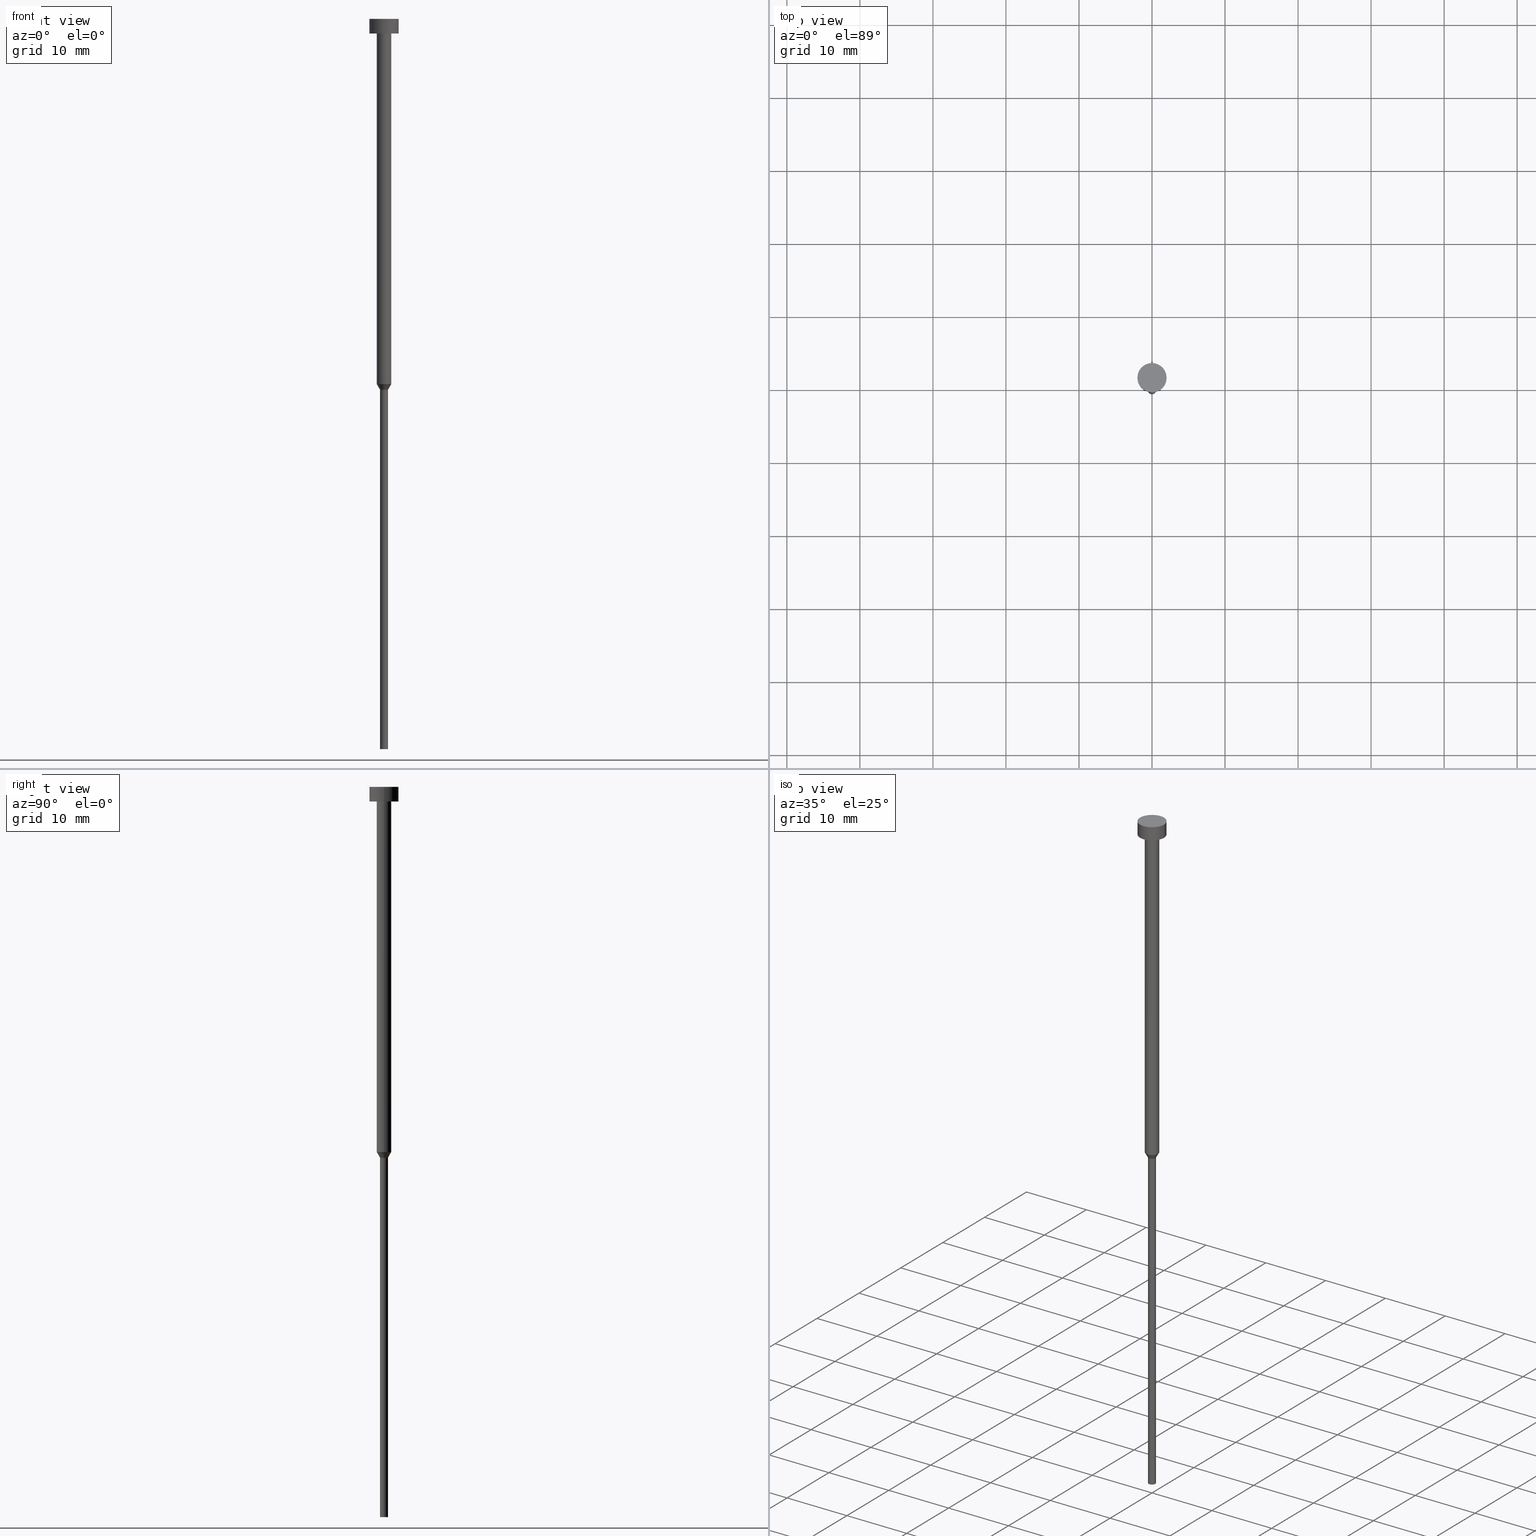
[diagram: canonical four-view strip — front | top / right | iso, engineering-drawing reading convention]
A machine part, canonical four-view strip (front | top / right | iso — engineering-drawing reading convention). The complete STEP part file that produces these views, byte-faithful:
ISO-10303-21;
HEADER;
FILE_DESCRIPTION (( 'STEP AP203' ),
    '1' );
FILE_NAME ('f33f.STEP',
    '2023-02-13T12:40:53',
    ( '' ),
    ( '' ),
    'SwSTEP 2.0',
    'SolidWorks 2019',
    '' );
FILE_SCHEMA (( 'CONFIG_CONTROL_DESIGN' ));
ENDSEC;

DATA;
#1 = CC_DESIGN_APPROVAL ( #96, ( #19 ) ) ;
#2 = CARTESIAN_POINT ( 'NONE',  ( 2.000000000000000000, 0.000000000000000000, -2.449293598294705921E-16 ) ) ;
#3 = ORIENTED_EDGE ( 'NONE', *, *, #132, .T. ) ;
#4 = LINE ( 'NONE', #281, #334 ) ;
#5 = ORIENTED_EDGE ( 'NONE', *, *, #119, .T. ) ;
#6 = DIRECTION ( 'NONE',  ( 1.000000000000000000, 0.000000000000000000, 0.000000000000000000 ) ) ;
#7 = SECURITY_CLASSIFICATION ( '', '', #217 ) ;
#8 = CARTESIAN_POINT ( 'NONE',  ( 0.000000000000000000, 0.000000000000000000, -50.77942286340599765 ) ) ;
#9 = DIRECTION ( 'NONE',  ( -0.000000000000000000, -0.000000000000000000, 1.000000000000000000 ) ) ;
#10 = CALENDAR_DATE ( 2023, 13, 2 ) ;
#11 = PLANE ( 'NONE',  #326 ) ;
#12 = AXIS2_PLACEMENT_3D ( 'NONE', #329, #80, #202 ) ;
#13 = APPROVAL_STATUS ( 'not_yet_approved' ) ;
#14 = DATE_AND_TIME ( #294, #292 ) ;
#15 = ORIENTED_EDGE ( 'NONE', *, *, #63, .T. ) ;
#16 = APPROVAL_ROLE ( '' ) ;
#17 = CARTESIAN_POINT ( 'NONE',  ( 0.000000000000000000, 0.000000000000000000, -2.000000000000000444 ) ) ;
#18 = CARTESIAN_POINT ( 'NONE',  ( 0.000000000000000000, 0.000000000000000000, 0.000000000000000000 ) ) ;
#19 = PRODUCT_DEFINITION ( 'NEZN�M�', '', #336, #175 ) ;
#20 = LINE ( 'NONE', #273, #157 ) ;
#21 = CIRCLE ( 'NONE', #251, 0.5500000000000000444 ) ;
#22 = DIRECTION ( 'NONE',  ( -0.000000000000000000, -0.000000000000000000, 1.000000000000000000 ) ) ;
#23 = CYLINDRICAL_SURFACE ( 'NONE', #12, 0.5499999999999999334 ) ;
#24 = CARTESIAN_POINT ( 'NONE',  ( 0.000000000000000000, 0.000000000000000000, -50.77942286340599765 ) ) ;
#25 = VERTEX_POINT ( 'NONE', #241 ) ;
#26 = AXIS2_PLACEMENT_3D ( 'NONE', #297, #170, #47 ) ;
#27 = AXIS2_PLACEMENT_3D ( 'NONE', #312, #309, #213 ) ;
#28 = LINE ( 'NONE', #115, #163 ) ;
#29 = DIRECTION ( 'NONE',  ( -0.000000000000000000, -0.000000000000000000, 1.000000000000000000 ) ) ;
#30 = CARTESIAN_POINT ( 'NONE',  ( 0.000000000000000000, 0.000000000000000000, -100.0000000000000000 ) ) ;
#31 = APPLICATION_CONTEXT ( 'configuration controlled 3d designs of mechanical parts and assemblies' ) ;
#32 = ORIENTED_EDGE ( 'NONE', *, *, #270, .T. ) ;
#33 = DIRECTION ( 'NONE',  ( -0.000000000000000000, -0.000000000000000000, 1.000000000000000000 ) ) ;
#34 = ORIENTED_EDGE ( 'NONE', *, *, #247, .F. ) ;
#35 = FACE_OUTER_BOUND ( 'NONE', #207, .T. ) ;
#36 = FACE_OUTER_BOUND ( 'NONE', #201, .T. ) ;
#37 = DIRECTION ( 'NONE',  ( -0.000000000000000000, -0.000000000000000000, 1.000000000000000000 ) ) ;
#38 = AXIS2_PLACEMENT_3D ( 'NONE', #30, #29, #330 ) ;
#39 = FACE_BOUND ( 'NONE', #143, .T. ) ;
#40 = AXIS2_PLACEMENT_3D ( 'NONE', #310, #57, #180 ) ;
#41 = AXIS2_PLACEMENT_3D ( 'NONE', #323, #73, #136 ) ;
#42 = UNCERTAINTY_MEASURE_WITH_UNIT (LENGTH_MEASURE( 1.000000000000000082E-05 ), #148, 'distance_accuracy_value', 'NONE');
#43 = CALENDAR_DATE ( 2023, 13, 2 ) ;
#44 = VERTEX_POINT ( 'NONE', #2 ) ;
#45 = CARTESIAN_POINT ( 'NONE',  ( 0.000000000000000000, 0.000000000000000000, -2.000000000000000444 ) ) ;
#46 = EDGE_CURVE ( 'NONE', #301, #250, #199, .T. ) ;
#47 = DIRECTION ( 'NONE',  ( 1.000000000000000000, 0.000000000000000000, 0.000000000000000000 ) ) ;
#48 = LOCAL_TIME ( 13, 40, 53.00000000000000000, #234 ) ;
#49 = ORIENTED_EDGE ( 'NONE', *, *, #247, .T. ) ;
#50 = ORIENTED_EDGE ( 'NONE', *, *, #288, .T. ) ;
#51 = FACE_OUTER_BOUND ( 'NONE', #197, .T. ) ;
#52 = ORIENTED_EDGE ( 'NONE', *, *, #81, .F. ) ;
#53 = AXIS2_PLACEMENT_3D ( 'NONE', #314, #62, #186 ) ;
#54 = DIRECTION ( 'NONE',  ( 1.000000000000000000, 0.000000000000000000, 0.000000000000000000 ) ) ;
#55 = VERTEX_POINT ( 'NONE', #219 ) ;
#56 = EDGE_LOOP ( 'NONE', ( #242, #3 ) ) ;
#57 = DIRECTION ( 'NONE',  ( -0.000000000000000000, -0.000000000000000000, 1.000000000000000000 ) ) ;
#58 = APPROVAL_STATUS ( 'not_yet_approved' ) ;
#59 = ADVANCED_BREP_SHAPE_REPRESENTATION ( 'f33f', ( #353, #53 ), #299 ) ;
#60 = AXIS2_PLACEMENT_3D ( 'NONE', #280, #274, #223 ) ;
#61 = MECHANICAL_CONTEXT ( 'NONE', #333, 'mechanical' ) ;
#62 = DIRECTION ( 'NONE',  ( 0.000000000000000000, 0.000000000000000000, 1.000000000000000000 ) ) ;
#63 = EDGE_CURVE ( 'NONE', #91, #232, #194, .T. ) ;
#64 = DATE_AND_TIME ( #258, #264 ) ;
#65 = CIRCLE ( 'NONE', #271, 2.000000000000000000 ) ;
#66 = CARTESIAN_POINT ( 'NONE',  ( 0.000000000000000000, 0.000000000000000000, 0.000000000000000000 ) ) ;
#67 = CIRCLE ( 'NONE', #27, 2.000000000000000000 ) ;
#68 = CARTESIAN_POINT ( 'NONE',  ( -2.000000000000000000, 2.449293598294706414E-16, -2.000000000000000444 ) ) ;
#69 = PRODUCT ( 'f33f', 'f33f', '', ( #61 ) ) ;
#70 = DIRECTION ( 'NONE',  ( 1.000000000000000000, 0.000000000000000000, 0.000000000000000000 ) ) ;
#71 = APPROVAL_DATE_TIME ( #286, #97 ) ;
#72 = AXIS2_PLACEMENT_3D ( 'NONE', #267, #9, #123 ) ;
#73 = DIRECTION ( 'NONE',  ( -0.000000000000000000, -0.000000000000000000, 1.000000000000000000 ) ) ;
#74 = CC_DESIGN_PERSON_AND_ORGANIZATION_ASSIGNMENT ( #212, #158, ( #69 ) ) ;
#75 = FACE_OUTER_BOUND ( 'NONE', #85, .T. ) ;
#76 = ADVANCED_FACE ( 'NONE', ( #196 ), #325, .T. ) ;
#77 = VECTOR ( 'NONE', #185, 1000.000000000000000 ) ;
#78 = DIRECTION ( 'NONE',  ( 1.000000000000000000, 0.000000000000000000, 0.000000000000000000 ) ) ;
#79 = EDGE_LOOP ( 'NONE', ( #122, #228 ) ) ;
#80 = DIRECTION ( 'NONE',  ( -0.000000000000000000, -0.000000000000000000, 1.000000000000000000 ) ) ;
#81 = EDGE_CURVE ( 'NONE', #91, #351, #20, .T. ) ;
#82 = DIRECTION ( 'NONE',  ( 0.000000000000000000, -0.000000000000000000, 1.000000000000000000 ) ) ;
#83 = EDGE_LOOP ( 'NONE', ( #110, #34 ) ) ;
#84 = CARTESIAN_POINT ( 'NONE',  ( 0.000000000000000000, 0.000000000000000000, -2.000000000000000444 ) ) ;
#85 = EDGE_LOOP ( 'NONE', ( #255, #141, #104, #114 ) ) ;
#86 = CIRCLE ( 'NONE', #291, 0.5500000000000000444 ) ;
#87 = AXIS2_PLACEMENT_3D ( 'NONE', #45, #245, #169 ) ;
#88 = DIRECTION ( 'NONE',  ( -0.000000000000000000, -0.000000000000000000, 1.000000000000000000 ) ) ;
#89 = ORIENTED_EDGE ( 'NONE', *, *, #81, .T. ) ;
#90 = EDGE_CURVE ( 'NONE', #55, #232, #142, .T. ) ;
#91 = VERTEX_POINT ( 'NONE', #302 ) ;
#92 = DATE_TIME_ROLE ( 'classification_date' ) ;
#93 = FACE_OUTER_BOUND ( 'NONE', #83, .T. ) ;
#94 = DIRECTION ( 'NONE',  ( -0.000000000000000000, -0.000000000000000000, 1.000000000000000000 ) ) ;
#95 = AXIS2_PLACEMENT_3D ( 'NONE', #285, #37, #340 ) ;
#96 = APPROVAL ( #13, 'NEUR�EN�' ) ;
#97 = APPROVAL ( #58, 'NEUR�EN�' ) ;
#98 = DIRECTION ( 'NONE',  ( -0.000000000000000000, -0.000000000000000000, 1.000000000000000000 ) ) ;
#99 = PERSON_AND_ORGANIZATION_ROLE ( 'creator' ) ;
#100 = DIRECTION ( 'NONE',  ( -0.000000000000000000, -0.000000000000000000, 1.000000000000000000 ) ) ;
#101 = AXIS2_PLACEMENT_3D ( 'NONE', #66, #315, #214 ) ;
#102 = EDGE_CURVE ( 'NONE', #250, #301, #239, .T. ) ;
#103 = ADVANCED_FACE ( 'NONE', ( #116 ), #327, .T. ) ;
#104 = ORIENTED_EDGE ( 'NONE', *, *, #90, .T. ) ;
#105 = CC_DESIGN_PERSON_AND_ORGANIZATION_ASSIGNMENT ( #164, #99, ( #336 ) ) ;
#106 = APPROVAL_STATUS ( 'not_yet_approved' ) ;
#107 = CLOSED_SHELL ( 'NONE', ( #76, #222, #283, #282, #156, #324, #277, #198, #168, #179, #103 ) ) ;
#108 = DIRECTION ( 'NONE',  ( -0.000000000000000000, -0.000000000000000000, 1.000000000000000000 ) ) ;
#109 = ORIENTED_EDGE ( 'NONE', *, *, #337, .F. ) ;
#110 = ORIENTED_EDGE ( 'NONE', *, *, #270, .F. ) ;
#111 = EDGE_CURVE ( 'NONE', #173, #55, #86, .T. ) ;
#112 = AXIS2_PLACEMENT_3D ( 'NONE', #204, #253, #174 ) ;
#113 = EDGE_CURVE ( 'NONE', #232, #284, #4, .T. ) ;
#114 = ORIENTED_EDGE ( 'NONE', *, *, #63, .F. ) ;
#115 = CARTESIAN_POINT ( 'NONE',  ( 0.5499999999999999334, 0.000000000000000000, 0.000000000000000000 ) ) ;
#116 = FACE_OUTER_BOUND ( 'NONE', #56, .T. ) ;
#117 = EDGE_LOOP ( 'NONE', ( #328, #49, #195, #230 ) ) ;
#118 = DIRECTION ( 'NONE',  ( -0.000000000000000000, -0.000000000000000000, 1.000000000000000000 ) ) ;
#119 = EDGE_CURVE ( 'NONE', #284, #351, #125, .T. ) ;
#120 = CIRCLE ( 'NONE', #140, 2.000000000000000000 ) ;
#121 = APPLICATION_PROTOCOL_DEFINITION ( 'international standard', 'config_control_design', 1994, #31 ) ;
#122 = ORIENTED_EDGE ( 'NONE', *, *, #46, .F. ) ;
#123 = DIRECTION ( 'NONE',  ( 1.000000000000000000, 0.000000000000000000, 0.000000000000000000 ) ) ;
#124 = PRODUCT_DEFINITION_SHAPE ( 'NONE', 'NONE',  #19 ) ;
#125 = CIRCLE ( 'NONE', #133, 1.000000000000003553 ) ;
#126 = CARTESIAN_POINT ( 'NONE',  ( 0.000000000000000000, 0.000000000000000000, -50.00000000000000000 ) ) ;
#127 = DIRECTION ( 'NONE',  ( 0.000000000000000000, 0.000000000000000000, -1.000000000000000000 ) ) ;
#128 = APPROVAL_ROLE ( '' ) ;
#129 = PLANE ( 'NONE',  #145 ) ;
#130 = EDGE_CURVE ( 'NONE', #250, #173, #254, .T. ) ;
#131 = SHAPE_DEFINITION_REPRESENTATION ( #124, #59 ) ;
#132 = EDGE_CURVE ( 'NONE', #338, #44, #65, .T. ) ;
#133 = AXIS2_PLACEMENT_3D ( 'NONE', #84, #304, #54 ) ;
#134 = CARTESIAN_POINT ( 'NONE',  ( 1.000000000000003109, 0.000000000000000000, -50.00000000000000000 ) ) ;
#135 = CIRCLE ( 'NONE', #72, 1.000000000000003553 ) ;
#136 = DIRECTION ( 'NONE',  ( 1.000000000000000000, 0.000000000000000000, 0.000000000000000000 ) ) ;
#137 = DATE_AND_TIME ( #43, #318 ) ;
#138 = DIRECTION ( 'NONE',  ( 1.000000000000000000, 0.000000000000000000, 0.000000000000000000 ) ) ;
#139 = ORIENTED_EDGE ( 'NONE', *, *, #189, .T. ) ;
#140 = AXIS2_PLACEMENT_3D ( 'NONE', #17, #100, #138 ) ;
#141 = ORIENTED_EDGE ( 'NONE', *, *, #111, .T. ) ;
#142 = LINE ( 'NONE', #319, #278 ) ;
#143 = EDGE_LOOP ( 'NONE', ( #5, #249 ) ) ;
#144 = ORIENTED_EDGE ( 'NONE', *, *, #354, .F. ) ;
#145 = AXIS2_PLACEMENT_3D ( 'NONE', #262, #231, #260 ) ;
#146 = ORIENTED_EDGE ( 'NONE', *, *, #165, .T. ) ;
#147 = ORIENTED_EDGE ( 'NONE', *, *, #348, .T. ) ;
#148 =( LENGTH_UNIT ( ) NAMED_UNIT ( * ) SI_UNIT ( .MILLI., .METRE. ) );
#149 = AXIS2_PLACEMENT_3D ( 'NONE', #126, #33, #344 ) ;
#150 = CC_DESIGN_APPROVAL ( #97, ( #7 ) ) ;
#151 = COORDINATED_UNIVERSAL_TIME_OFFSET ( 1, 0, .AHEAD. ) ;
#152 = CARTESIAN_POINT ( 'NONE',  ( -0.5500000000000000444, 6.735557395310442516E-17, -50.77942286340599765 ) ) ;
#153 = CYLINDRICAL_SURFACE ( 'NONE', #95, 0.5499999999999999334 ) ;
#154 = EDGE_CURVE ( 'NONE', #25, #44, #237, .T. ) ;
#155 = CARTESIAN_POINT ( 'NONE',  ( -2.000000000000000000, 2.449293598294706414E-16, -2.449293598294705921E-16 ) ) ;
#156 = ADVANCED_FACE ( 'NONE', ( #182 ), #129, .T. ) ;
#157 = VECTOR ( 'NONE', #22, 1000.000000000000000 ) ;
#158 = PERSON_AND_ORGANIZATION_ROLE ( 'design_owner' ) ;
#159 = COORDINATED_UNIVERSAL_TIME_OFFSET ( 1, 0, .AHEAD. ) ;
#160 = EDGE_CURVE ( 'NONE', #351, #284, #135, .T. ) ;
#161 = FACE_OUTER_BOUND ( 'NONE', #257, .T. ) ;
#162 = PRODUCT_RELATED_PRODUCT_CATEGORY ( 'detail', '', ( #69 ) ) ;
#163 = VECTOR ( 'NONE', #227, 1000.000000000000000 ) ;
#164 = PERSON_AND_ORGANIZATION ( #184, #216 ) ;
#165 = EDGE_CURVE ( 'NONE', #276, #338, #235, .T. ) ;
#166 = DIRECTION ( 'NONE',  ( 1.000000000000000000, 0.000000000000000000, 0.000000000000000000 ) ) ;
#167 = ORIENTED_EDGE ( 'NONE', *, *, #288, .F. ) ;
#168 = ADVANCED_FACE ( 'NONE', ( #39, #93 ), #11, .T. ) ;
#169 = DIRECTION ( 'NONE',  ( 1.000000000000000000, 0.000000000000000000, 0.000000000000000000 ) ) ;
#170 = DIRECTION ( 'NONE',  ( -0.000000000000000000, -0.000000000000000000, 1.000000000000000000 ) ) ;
#171 = CC_DESIGN_APPROVAL ( #307, ( #336 ) ) ;
#172 = EDGE_LOOP ( 'NONE', ( #32, #146, #144, #205 ) ) ;
#173 = VERTEX_POINT ( 'NONE', #152 ) ;
#174 = DIRECTION ( 'NONE',  ( 1.000000000000000000, 0.000000000000000000, 0.000000000000000000 ) ) ;
#175 = DESIGN_CONTEXT ( 'detailed design', #31, 'design' ) ;
#176 = DIRECTION ( 'NONE',  ( -0.000000000000000000, -0.000000000000000000, 1.000000000000000000 ) ) ;
#177 = DIRECTION ( 'NONE',  ( 1.000000000000000000, 0.000000000000000000, 0.000000000000000000 ) ) ;
#178 = ORIENTED_EDGE ( 'NONE', *, *, #113, .T. ) ;
#179 = ADVANCED_FACE ( 'NONE', ( #236 ), #347, .T. ) ;
#180 = DIRECTION ( 'NONE',  ( 1.000000000000000000, 0.000000000000000000, 0.000000000000000000 ) ) ;
#181 = VECTOR ( 'NONE', #98, 1000.000000000000000 ) ;
#182 = FACE_OUTER_BOUND ( 'NONE', #79, .T. ) ;
#183 = COORDINATED_UNIVERSAL_TIME_OFFSET ( 1, 0, .AHEAD. ) ;
#184 = PERSON ( 'NEUR�EN�', 'NEUR�EN�', 'NEUR�EN�', ('NEUR�EN�'), ('NEUR�EN�'), ('NEUR�EN�') ) ;
#185 = DIRECTION ( 'NONE',  ( -0.000000000000000000, -0.000000000000000000, 1.000000000000000000 ) ) ;
#186 = DIRECTION ( 'NONE',  ( 1.000000000000000000, 0.000000000000000000, 0.000000000000000000 ) ) ;
#187 = CARTESIAN_POINT ( 'NONE',  ( -2.000000000000000000, 2.449293598294706414E-16, 0.000000000000000000 ) ) ;
#188 = VECTOR ( 'NONE', #118, 1000.000000000000000 ) ;
#189 = EDGE_CURVE ( 'NONE', #173, #91, #290, .T. ) ;
#190 = DATE_TIME_ROLE ( 'creation_date' ) ;
#191 = VECTOR ( 'NONE', #317, 1000.000000000000000 ) ;
#192 = DIRECTION ( 'NONE',  ( 0.5000000000000027756, 0.000000000000000000, 0.8660254037844370423 ) ) ;
#193 = CARTESIAN_POINT ( 'NONE',  ( -0.5499999999999999334, 6.735557395310441284E-17, -100.0000000000000000 ) ) ;
#194 = CIRCLE ( 'NONE', #41, 1.000000000000003109 ) ;
#195 = ORIENTED_EDGE ( 'NONE', *, *, #154, .T. ) ;
#196 = FACE_OUTER_BOUND ( 'NONE', #172, .T. ) ;
#197 = EDGE_LOOP ( 'NONE', ( #269, #331, #225, #167 ) ) ;
#198 = ADVANCED_FACE ( 'NONE', ( #161 ), #341, .T. ) ;
#199 = CIRCLE ( 'NONE', #256, 0.5499999999999999334 ) ;
#200 = APPROVAL_PERSON_ORGANIZATION ( #208, #97, #261 ) ;
#201 = EDGE_LOOP ( 'NONE', ( #332, #248, #50, #306 ) ) ;
#202 = DIRECTION ( 'NONE',  ( 1.000000000000000000, 0.000000000000000000, 0.000000000000000000 ) ) ;
#203 = ORIENTED_EDGE ( 'NONE', *, *, #337, .T. ) ;
#204 = CARTESIAN_POINT ( 'NONE',  ( 0.000000000000000000, 0.000000000000000000, -50.00000000000000000 ) ) ;
#205 = ORIENTED_EDGE ( 'NONE', *, *, #154, .F. ) ;
#206 =( NAMED_UNIT ( * ) PLANE_ANGLE_UNIT ( ) SI_UNIT ( $, .RADIAN. ) );
#207 = EDGE_LOOP ( 'NONE', ( #203, #89, #311, #226 ) ) ;
#208 = PERSON_AND_ORGANIZATION ( #184, #216 ) ;
#209 = CARTESIAN_POINT ( 'NONE',  ( -1.000000000000003553, 1.224646799147357398E-16, -2.000000000000000444 ) ) ;
#210 = CARTESIAN_POINT ( 'NONE',  ( -1.000000000000003109, 1.224646799147356905E-16, -50.00000000000000000 ) ) ;
#211 = AXIS2_PLACEMENT_3D ( 'NONE', #18, #244, #166 ) ;
#212 = PERSON_AND_ORGANIZATION ( #184, #216 ) ;
#213 = DIRECTION ( 'NONE',  ( 1.000000000000000000, 0.000000000000000000, 0.000000000000000000 ) ) ;
#214 = DIRECTION ( 'NONE',  ( 1.000000000000000000, 0.000000000000000000, 0.000000000000000000 ) ) ;
#215 = PERSON_AND_ORGANIZATION_ROLE ( 'classification_officer' ) ;
#216 = ORGANIZATION ( 'NEUR�EN�', 'NEUR�EN�', '' ) ;
#217 = SECURITY_CLASSIFICATION_LEVEL ( 'unclassified' ) ;
#218 = PERSON_AND_ORGANIZATION ( #184, #216 ) ;
#219 = CARTESIAN_POINT ( 'NONE',  ( 0.5500000000000000444, 0.000000000000000000, -50.77942286340599765 ) ) ;
#220 = CARTESIAN_POINT ( 'NONE',  ( 0.000000000000000000, 0.000000000000000000, -100.0000000000000000 ) ) ;
#221 = CC_DESIGN_PERSON_AND_ORGANIZATION_ASSIGNMENT ( #295, #321, ( #19 ) ) ;
#222 = ADVANCED_FACE ( 'NONE', ( #35 ), #298, .T. ) ;
#223 = DIRECTION ( 'NONE',  ( 1.000000000000000000, 0.000000000000000000, 0.000000000000000000 ) ) ;
#224 = CIRCLE ( 'NONE', #87, 2.000000000000000000 ) ;
#225 = ORIENTED_EDGE ( 'NONE', *, *, #348, .F. ) ;
#226 = ORIENTED_EDGE ( 'NONE', *, *, #113, .F. ) ;
#227 = DIRECTION ( 'NONE',  ( -0.000000000000000000, -0.000000000000000000, 1.000000000000000000 ) ) ;
#228 = ORIENTED_EDGE ( 'NONE', *, *, #102, .F. ) ;
#229 = CARTESIAN_POINT ( 'NONE',  ( 0.000000000000000000, 0.000000000000000000, -2.449293598294705921E-16 ) ) ;
#230 = ORIENTED_EDGE ( 'NONE', *, *, #132, .F. ) ;
#231 = DIRECTION ( 'NONE',  ( 0.000000000000000000, 0.000000000000000000, -1.000000000000000000 ) ) ;
#232 = VERTEX_POINT ( 'NONE', #134 ) ;
#233 = CALENDAR_DATE ( 2023, 13, 2 ) ;
#234 = COORDINATED_UNIVERSAL_TIME_OFFSET ( 1, 0, .AHEAD. ) ;
#235 = LINE ( 'NONE', #187, #181 ) ;
#236 = FACE_OUTER_BOUND ( 'NONE', #117, .T. ) ;
#237 = LINE ( 'NONE', #287, #77 ) ;
#238 = PERSON_AND_ORGANIZATION ( #184, #216 ) ;
#239 = CIRCLE ( 'NONE', #38, 0.5499999999999999334 ) ;
#240 = LOCAL_TIME ( 13, 40, 53.00000000000000000, #183 ) ;
#241 = CARTESIAN_POINT ( 'NONE',  ( 2.000000000000000000, 0.000000000000000000, -2.000000000000000444 ) ) ;
#242 = ORIENTED_EDGE ( 'NONE', *, *, #354, .T. ) ;
#243 = APPROVAL_DATE_TIME ( #137, #307 ) ;
#244 = DIRECTION ( 'NONE',  ( -0.000000000000000000, -0.000000000000000000, 1.000000000000000000 ) ) ;
#245 = DIRECTION ( 'NONE',  ( -0.000000000000000000, -0.000000000000000000, 1.000000000000000000 ) ) ;
#246 = AXIS2_PLACEMENT_3D ( 'NONE', #335, #82, #300 ) ;
#247 = EDGE_CURVE ( 'NONE', #276, #25, #224, .T. ) ;
#248 = ORIENTED_EDGE ( 'NONE', *, *, #102, .T. ) ;
#249 = ORIENTED_EDGE ( 'NONE', *, *, #160, .T. ) ;
#250 = VERTEX_POINT ( 'NONE', #193 ) ;
#251 = AXIS2_PLACEMENT_3D ( 'NONE', #8, #94, #6 ) ;
#252 = DIRECTION ( 'NONE',  ( -0.000000000000000000, -0.000000000000000000, 1.000000000000000000 ) ) ;
#253 = DIRECTION ( 'NONE',  ( -0.000000000000000000, -0.000000000000000000, 1.000000000000000000 ) ) ;
#254 = LINE ( 'NONE', #275, #188 ) ;
#255 = ORIENTED_EDGE ( 'NONE', *, *, #189, .F. ) ;
#256 = AXIS2_PLACEMENT_3D ( 'NONE', #220, #108, #70 ) ;
#257 = EDGE_LOOP ( 'NONE', ( #52, #15, #178, #296 ) ) ;
#258 = CALENDAR_DATE ( 2023, 13, 2 ) ;
#259 = CARTESIAN_POINT ( 'NONE',  ( 0.5499999999999999334, 0.000000000000000000, -100.0000000000000000 ) ) ;
#260 = DIRECTION ( 'NONE',  ( -1.000000000000000000, 0.000000000000000000, -0.000000000000000000 ) ) ;
#261 = APPROVAL_ROLE ( '' ) ;
#262 = CARTESIAN_POINT ( 'NONE',  ( 0.000000000000000000, 0.000000000000000000, -100.0000000000000000 ) ) ;
#263 = CC_DESIGN_DATE_AND_TIME_ASSIGNMENT ( #14, #190, ( #19 ) ) ;
#264 = LOCAL_TIME ( 13, 40, 53.00000000000000000, #151 ) ;
#265 = PERSON_AND_ORGANIZATION ( #184, #216 ) ;
#266 = COORDINATED_UNIVERSAL_TIME_OFFSET ( 1, 0, .AHEAD. ) ;
#267 = CARTESIAN_POINT ( 'NONE',  ( 0.000000000000000000, 0.000000000000000000, -2.000000000000000444 ) ) ;
#268 = PERSON_AND_ORGANIZATION ( #184, #216 ) ;
#269 = ORIENTED_EDGE ( 'NONE', *, *, #46, .T. ) ;
#270 = EDGE_CURVE ( 'NONE', #25, #276, #120, .T. ) ;
#271 = AXIS2_PLACEMENT_3D ( 'NONE', #229, #88, #177 ) ;
#272 = APPROVAL_PERSON_ORGANIZATION ( #265, #96, #128 ) ;
#273 = CARTESIAN_POINT ( 'NONE',  ( -1.000000000000003331, 1.224646799147357151E-16, 0.000000000000000000 ) ) ;
#274 = DIRECTION ( 'NONE',  ( -0.000000000000000000, -0.000000000000000000, 1.000000000000000000 ) ) ;
#275 = CARTESIAN_POINT ( 'NONE',  ( -0.5499999999999999334, 6.735557395310441284E-17, 0.000000000000000000 ) ) ;
#276 = VERTEX_POINT ( 'NONE', #68 ) ;
#277 = ADVANCED_FACE ( 'NONE', ( #75 ), #305, .T. ) ;
#278 = VECTOR ( 'NONE', #192, 1000.000000000000000 ) ;
#279 = CARTESIAN_POINT ( 'NONE',  ( 1.000000000000003553, 0.000000000000000000, -2.000000000000000444 ) ) ;
#280 = CARTESIAN_POINT ( 'NONE',  ( 0.000000000000000000, 0.000000000000000000, -50.00000000000000000 ) ) ;
#281 = CARTESIAN_POINT ( 'NONE',  ( 1.000000000000003331, 0.000000000000000000, 0.000000000000000000 ) ) ;
#282 = ADVANCED_FACE ( 'NONE', ( #51 ), #23, .T. ) ;
#283 = ADVANCED_FACE ( 'NONE', ( #303 ), #313, .T. ) ;
#284 = VERTEX_POINT ( 'NONE', #279 ) ;
#285 = CARTESIAN_POINT ( 'NONE',  ( 0.000000000000000000, 0.000000000000000000, 0.000000000000000000 ) ) ;
#286 = DATE_AND_TIME ( #10, #240 ) ;
#287 = CARTESIAN_POINT ( 'NONE',  ( 2.000000000000000000, 0.000000000000000000, 0.000000000000000000 ) ) ;
#288 = EDGE_CURVE ( 'NONE', #301, #55, #28, .T. ) ;
#289 = CC_DESIGN_PERSON_AND_ORGANIZATION_ASSIGNMENT ( #218, #352, ( #336 ) ) ;
#290 = LINE ( 'NONE', #210, #191 ) ;
#291 = AXIS2_PLACEMENT_3D ( 'NONE', #24, #176, #78 ) ;
#292 = LOCAL_TIME ( 13, 40, 53.00000000000000000, #159 ) ;
#293 = DIRECTION ( 'NONE',  ( -1.000000000000000000, 0.000000000000000000, -0.000000000000000000 ) ) ;
#294 = CALENDAR_DATE ( 2023, 13, 2 ) ;
#295 = PERSON_AND_ORGANIZATION ( #184, #216 ) ;
#296 = ORIENTED_EDGE ( 'NONE', *, *, #160, .F. ) ;
#297 = CARTESIAN_POINT ( 'NONE',  ( 0.000000000000000000, 0.000000000000000000, 0.000000000000000000 ) ) ;
#298 = CYLINDRICAL_SURFACE ( 'NONE', #211, 1.000000000000003331 ) ;
#299 =( GEOMETRIC_REPRESENTATION_CONTEXT ( 3 ) GLOBAL_UNCERTAINTY_ASSIGNED_CONTEXT ( ( #42 ) ) GLOBAL_UNIT_ASSIGNED_CONTEXT ( ( #148, #206, #346 ) ) REPRESENTATION_CONTEXT ( 'NONE', 'WORKASPACE' ) );
#300 = DIRECTION ( 'NONE',  ( 1.000000000000000000, 0.000000000000000000, 0.000000000000000000 ) ) ;
#301 = VERTEX_POINT ( 'NONE', #259 ) ;
#302 = CARTESIAN_POINT ( 'NONE',  ( -1.000000000000003109, 1.224646799147356905E-16, -50.00000000000000000 ) ) ;
#303 = FACE_OUTER_BOUND ( 'NONE', #308, .T. ) ;
#304 = DIRECTION ( 'NONE',  ( -0.000000000000000000, -0.000000000000000000, 1.000000000000000000 ) ) ;
#305 = CONICAL_SURFACE ( 'NONE', #60, 1.000000000000003109, 0.5235987755983020353 ) ;
#306 = ORIENTED_EDGE ( 'NONE', *, *, #111, .F. ) ;
#307 = APPROVAL ( #106, 'NEUR�EN�' ) ;
#308 = EDGE_LOOP ( 'NONE', ( #147, #139, #109, #342 ) ) ;
#309 = DIRECTION ( 'NONE',  ( -0.000000000000000000, -0.000000000000000000, 1.000000000000000000 ) ) ;
#310 = CARTESIAN_POINT ( 'NONE',  ( 0.000000000000000000, 0.000000000000000000, 0.000000000000000000 ) ) ;
#311 = ORIENTED_EDGE ( 'NONE', *, *, #119, .F. ) ;
#312 = CARTESIAN_POINT ( 'NONE',  ( 0.000000000000000000, 0.000000000000000000, -2.449293598294705921E-16 ) ) ;
#313 = CONICAL_SURFACE ( 'NONE', #112, 1.000000000000003109, 0.5235987755983020353 ) ;
#314 = CARTESIAN_POINT ( 'NONE',  ( 0.000000000000000000, 0.000000000000000000, 0.000000000000000000 ) ) ;
#315 = DIRECTION ( 'NONE',  ( -0.000000000000000000, -0.000000000000000000, 1.000000000000000000 ) ) ;
#316 = APPLICATION_PROTOCOL_DEFINITION ( 'international standard', 'config_control_design', 1994, #333 ) ;
#317 = DIRECTION ( 'NONE',  ( -0.5000000000000027756, 6.123233995736800549E-17, 0.8660254037844370423 ) ) ;
#318 = LOCAL_TIME ( 13, 40, 53.00000000000000000, #266 ) ;
#319 = CARTESIAN_POINT ( 'NONE',  ( 1.000000000000003109, 0.000000000000000000, -50.00000000000000000 ) ) ;
#320 = CC_DESIGN_PERSON_AND_ORGANIZATION_ASSIGNMENT ( #238, #215, ( #7 ) ) ;
#321 = PERSON_AND_ORGANIZATION_ROLE ( 'creator' ) ;
#322 = CIRCLE ( 'NONE', #149, 1.000000000000003109 ) ;
#323 = CARTESIAN_POINT ( 'NONE',  ( 0.000000000000000000, 0.000000000000000000, -50.00000000000000000 ) ) ;
#324 = ADVANCED_FACE ( 'NONE', ( #36 ), #153, .T. ) ;
#325 = CYLINDRICAL_SURFACE ( 'NONE', #26, 2.000000000000000000 ) ;
#326 = AXIS2_PLACEMENT_3D ( 'NONE', #345, #127, #293 ) ;
#327 = PLANE ( 'NONE',  #246 ) ;
#328 = ORIENTED_EDGE ( 'NONE', *, *, #165, .F. ) ;
#329 = CARTESIAN_POINT ( 'NONE',  ( 0.000000000000000000, 0.000000000000000000, 0.000000000000000000 ) ) ;
#330 = DIRECTION ( 'NONE',  ( 1.000000000000000000, 0.000000000000000000, 0.000000000000000000 ) ) ;
#331 = ORIENTED_EDGE ( 'NONE', *, *, #130, .T. ) ;
#332 = ORIENTED_EDGE ( 'NONE', *, *, #130, .F. ) ;
#333 = APPLICATION_CONTEXT ( 'configuration controlled 3d designs of mechanical parts and assemblies' ) ;
#334 = VECTOR ( 'NONE', #252, 1000.000000000000000 ) ;
#335 = CARTESIAN_POINT ( 'NONE',  ( 0.000000000000000000, 0.000000000000000000, -1.224646799147352961E-16 ) ) ;
#336 = PRODUCT_DEFINITION_FORMATION_WITH_SPECIFIED_SOURCE ( 'LIBOVOLN�', '', #69, .NOT_KNOWN. ) ;
#337 = EDGE_CURVE ( 'NONE', #232, #91, #322, .T. ) ;
#338 = VERTEX_POINT ( 'NONE', #155 ) ;
#339 = CC_DESIGN_DATE_AND_TIME_ASSIGNMENT ( #343, #92, ( #7 ) ) ;
#340 = DIRECTION ( 'NONE',  ( 1.000000000000000000, 0.000000000000000000, 0.000000000000000000 ) ) ;
#341 = CYLINDRICAL_SURFACE ( 'NONE', #40, 1.000000000000003331 ) ;
#342 = ORIENTED_EDGE ( 'NONE', *, *, #90, .F. ) ;
#343 = DATE_AND_TIME ( #233, #48 ) ;
#344 = DIRECTION ( 'NONE',  ( 1.000000000000000000, 0.000000000000000000, 0.000000000000000000 ) ) ;
#345 = CARTESIAN_POINT ( 'NONE',  ( 0.000000000000000000, -2.000000000000000000, -2.000000000000000444 ) ) ;
#346 =( NAMED_UNIT ( * ) SI_UNIT ( $, .STERADIAN. ) SOLID_ANGLE_UNIT ( ) );
#347 = CYLINDRICAL_SURFACE ( 'NONE', #101, 2.000000000000000000 ) ;
#348 = EDGE_CURVE ( 'NONE', #55, #173, #21, .T. ) ;
#349 = CC_DESIGN_SECURITY_CLASSIFICATION ( #7, ( #336 ) ) ;
#350 = APPROVAL_PERSON_ORGANIZATION ( #268, #307, #16 ) ;
#351 = VERTEX_POINT ( 'NONE', #209 ) ;
#352 = PERSON_AND_ORGANIZATION_ROLE ( 'design_supplier' ) ;
#353 = MANIFOLD_SOLID_BREP ( 'Rotovat1', #107 ) ;
#354 = EDGE_CURVE ( 'NONE', #44, #338, #67, .T. ) ;
#355 = APPROVAL_DATE_TIME ( #64, #96 ) ;
ENDSEC;
END-ISO-10303-21;
